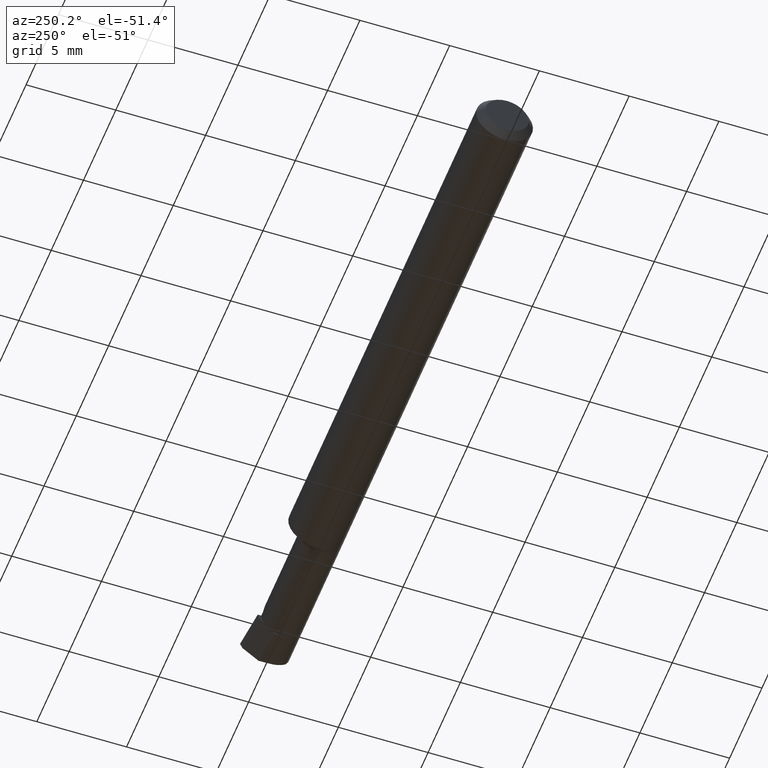
[diagram: clean part render]
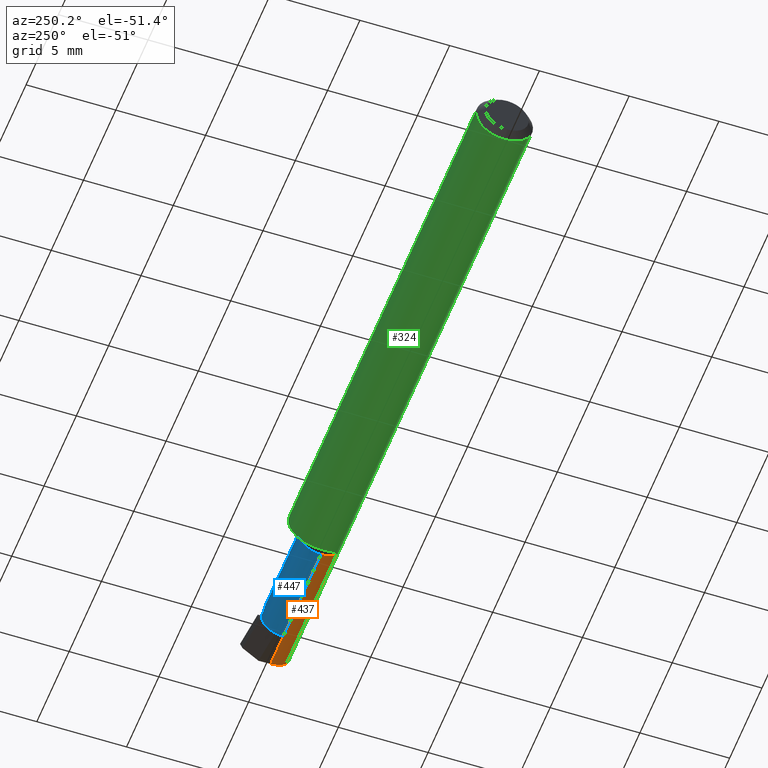
[diagram: same view with three faces highlighted in distinct colors, each labeled with its STEP entity id]
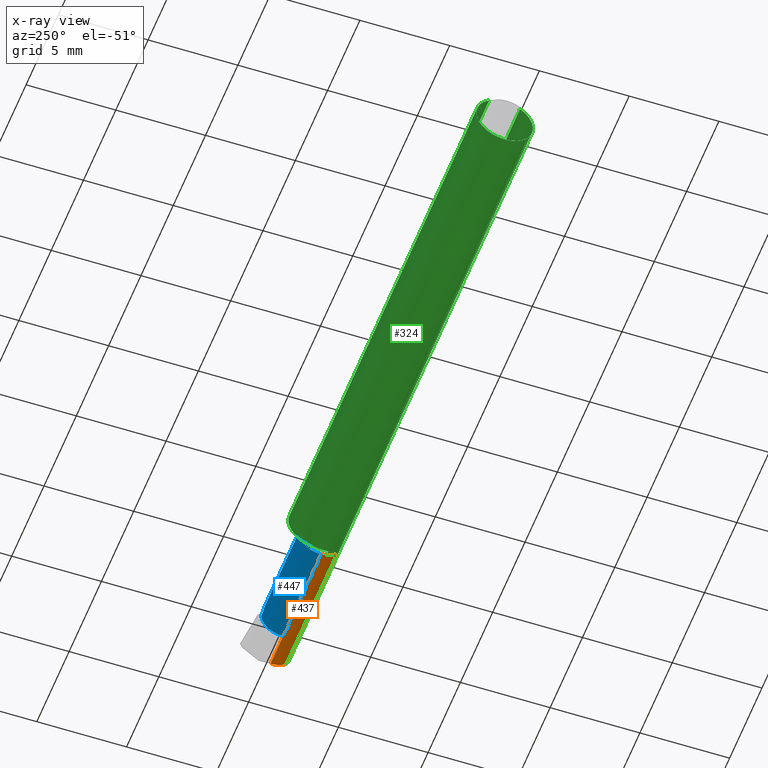
[diagram: x-ray of the same camera — body ghosted, the three highlighted faces saturated]
A machine part, auxiliary view with three faces highlighted in distinct colors.
The next image is the same camera in x-ray (body ghosted, the three faces saturated) — at least one of them is partly hidden behind the body in this view.
Their STEP definitions:

[orange] entity #437 — the highlighted cylindrical surface (edge-blend (fillet) strip) has radius 1.2205 mm, axis along (-1, -0, -0).
#7 = AXIS2_PLACEMENT_3D ( 'NONE', #164, #116, #564 ) ;
#23 = CARTESIAN_POINT ( 'NONE',  ( 1.500000000000000222, -0.01839999999999999969, -0.04804999999999998855 ) ) ;
#27 = CIRCLE ( 'NONE', #7, 0.04804999999999996774 ) ;
#30 = AXIS2_PLACEMENT_3D ( 'NONE', #473, #199, #482 ) ;
#44 = EDGE_CURVE ( 'NONE', #56, #662, #343, .T. ) ;
#45 = CARTESIAN_POINT ( 'NONE',  ( 1.492086480543131533, -0.03117368152160946565, -0.04805000000000000243 ) ) ;
#56 = VERTEX_POINT ( 'NONE', #441 ) ;
#79 = EDGE_CURVE ( 'NONE', #662, #507, #27, .T. ) ;
#100 = CARTESIAN_POINT ( 'NONE',  ( 1.493233423732482024, -0.05210000000000004211, -0.03425072991922938764 ) ) ;
#104 = CARTESIAN_POINT ( 'NONE',  ( 1.492371467082626024, -0.04299473640227066684, -0.04320958667840190531 ) ) ;
#115 = ORIENTED_EDGE ( 'NONE', *, *, #79, .F. ) ;
#116 = DIRECTION ( 'NONE',  ( -1.000000000000000000, -0.0000000000000000000, -0.0000000000000000000 ) ) ;
#123 = CYLINDRICAL_SURFACE ( 'NONE', #30, 0.04804999999999998161 ) ;
#150 = CARTESIAN_POINT ( 'NONE',  ( 1.493233423732482024, -0.05210000000000004211, -0.03425072991922938764 ) ) ;
#163 = EDGE_LOOP ( 'NONE', ( #577, #521, #411, #506, #115 ) ) ;
#164 = CARTESIAN_POINT ( 'NONE',  ( 1.185000000000000275, -0.01839999999999999969, 0.0000000000000000000 ) ) ;
#197 = FACE_OUTER_BOUND ( 'NONE', #163, .T. ) ;
#199 = DIRECTION ( 'NONE',  ( -1.000000000000000000, -0.0000000000000000000, -0.0000000000000000000 ) ) ;
#213 = CARTESIAN_POINT ( 'NONE',  ( 0.0000000000000000000, -0.01839999999999999275, -0.04804999999999998161 ) ) ;
#230 = DIRECTION ( 'NONE',  ( -1.000000000000000000, 5.691349986800549142E-18, -0.0000000000000000000 ) ) ;
#265 = CARTESIAN_POINT ( 'NONE',  ( 1.492420971165606458, -0.01839999999999999969, -0.04804999999999998855 ) ) ;
#277 = DIRECTION ( 'NONE',  ( -1.000000000000000000, -0.0000000000000000000, -0.0000000000000000000 ) ) ;
#305 = LINE ( 'NONE', #23, #458 ) ;
#340 = CARTESIAN_POINT ( 'NONE',  ( 1.492420971165606458, -0.01839999999999999969, -0.04804999999999998855 ) ) ;
#343 = LINE ( 'NONE', #213, #567 ) ;
#389 = DIRECTION ( 'NONE',  ( -1.000000000000000000, -0.0000000000000000000, -0.0000000000000000000 ) ) ;
#391 = VECTOR ( 'NONE', #277, 39.37007874015748143 ) ;
#411 = ORIENTED_EDGE ( 'NONE', *, *, #435, .F. ) ;
#435 = EDGE_CURVE ( 'NONE', #442, #637, #618, .T. ) ;
#437 = ADVANCED_FACE ( 'NONE', ( #197 ), #123, .T. ) ;
#441 = CARTESIAN_POINT ( 'NONE',  ( 1.415000000000000036, -0.01839999999999999969, -0.04804999999999998855 ) ) ;
#442 = VERTEX_POINT ( 'NONE', #150 ) ;
#458 = VECTOR ( 'NONE', #230, 39.37007874015748143 ) ;
#468 = LINE ( 'NONE', #664, #391 ) ;
#473 = CARTESIAN_POINT ( 'NONE',  ( 0.0000000000000000000, -0.01839999999999999969, 0.0000000000000000000 ) ) ;
#482 = DIRECTION ( 'NONE',  ( 0.0000000000000000000, 0.0000000000000000000, 1.000000000000000000 ) ) ;
#506 = ORIENTED_EDGE ( 'NONE', *, *, #532, .T. ) ;
#507 = VERTEX_POINT ( 'NONE', #556 ) ;
#521 = ORIENTED_EDGE ( 'NONE', *, *, #647, .F. ) ;
#532 = EDGE_CURVE ( 'NONE', #442, #507, #468, .T. ) ;
#556 = CARTESIAN_POINT ( 'NONE',  ( 1.185000000000000275, -0.05210000000000005599, -0.03425072991922935989 ) ) ;
#564 = DIRECTION ( 'NONE',  ( 0.0000000000000000000, 0.0000000000000000000, 1.000000000000000000 ) ) ;
#567 = VECTOR ( 'NONE', #389, 39.37007874015748143 ) ;
#577 = ORIENTED_EDGE ( 'NONE', *, *, #44, .F. ) ;
#618 =( BOUNDED_CURVE ( )  B_SPLINE_CURVE ( 3, ( #100, #104, #45, #265 ),
 .UNSPECIFIED., .F., .T. ) 
 B_SPLINE_CURVE_WITH_KNOTS ( ( 4, 4 ),
 ( 5.715941252449187715, 6.493234751459775467 ),
 .UNSPECIFIED. ) 
 CURVE ( )  GEOMETRIC_REPRESENTATION_ITEM ( )  RATIONAL_B_SPLINE_CURVE ( ( 1.000000000000000000, 0.9502818019828908058, 0.9502818019828908058, 1.000000000000000000 ) ) 
 REPRESENTATION_ITEM ( '' )  );
#637 = VERTEX_POINT ( 'NONE', #340 ) ;
#647 = EDGE_CURVE ( 'NONE', #637, #56, #305, .T. ) ;
#662 = VERTEX_POINT ( 'NONE', #677 ) ;
#664 = CARTESIAN_POINT ( 'NONE',  ( 1.300000000000000044, -0.05210000000000004211, -0.03425072991922938764 ) ) ;
#677 = CARTESIAN_POINT ( 'NONE',  ( 1.185000000000000275, -0.01839999999999999275, -0.04804999999999996774 ) ) ;

[blue] entity #447 — the highlighted cylindrical surface (edge-blend (fillet) strip) has radius 1.2205 mm, axis along (-1, -0, -0).
#5 = CARTESIAN_POINT ( 'NONE',  ( 1.415000000000000036, 0.02964999999999999233, 1.836970198721026236E-16 ) ) ;
#8 = DIRECTION ( 'NONE',  ( -1.000000000000000000, -0.0000000000000000000, -0.0000000000000000000 ) ) ;
#12 = CARTESIAN_POINT ( 'NONE',  ( 1.356949999999999656, 0.009747038327972771740, 0.04804999999999998855 ) ) ;
#14 = AXIS2_PLACEMENT_3D ( 'NONE', #178, #71, #614 ) ;
#15 = CARTESIAN_POINT ( 'NONE',  ( 1.376852961672026865, 0.02964999999999998540, 0.02814703832797277663 ) ) ;
#34 = VERTEX_POINT ( 'NONE', #5 ) ;
#44 = EDGE_CURVE ( 'NONE', #56, #662, #343, .T. ) ;
#56 = VERTEX_POINT ( 'NONE', #441 ) ;
#63 = CARTESIAN_POINT ( 'NONE',  ( 1.356949999999999878, -0.01839999999999999969, 0.04804999999999998161 ) ) ;
#64 = FACE_OUTER_BOUND ( 'NONE', #348, .T. ) ;
#67 = CARTESIAN_POINT ( 'NONE',  ( 1.405000000000000249, 0.02964999999999991601, 1.163414459189982046E-17 ) ) ;
#70 = ORIENTED_EDGE ( 'NONE', *, *, #149, .T. ) ;
#71 = DIRECTION ( 'NONE',  ( -1.000000000000000000, -0.0000000000000000000, -0.0000000000000000000 ) ) ;
#121 = EDGE_CURVE ( 'NONE', #258, #34, #145, .T. ) ;
#128 = VERTEX_POINT ( 'NONE', #63 ) ;
#136 = CARTESIAN_POINT ( 'NONE',  ( 1.415000000000000036, 0.007456147106387211315, -0.04050015008383134330 ) ) ;
#142 = ORIENTED_EDGE ( 'NONE', *, *, #233, .F. ) ;
#145 = LINE ( 'NONE', #337, #153 ) ;
#149 = EDGE_CURVE ( 'NONE', #128, #258, #383, .T. ) ;
#153 = VECTOR ( 'NONE', #332, 39.37007874015748143 ) ;
#155 = ORIENTED_EDGE ( 'NONE', *, *, #402, .F. ) ;
#177 = CARTESIAN_POINT ( 'NONE',  ( 1.185000000000000275, -0.01839999999999999969, 0.04804999999999996774 ) ) ;
#178 = CARTESIAN_POINT ( 'NONE',  ( 1.415000000000000036, -0.01839999999999999969, 0.0000000000000000000 ) ) ;
#198 = CIRCLE ( 'NONE', #626, 0.04805000000000000243 ) ;
#211 = DIRECTION ( 'NONE',  ( -1.000000000000000000, -0.0000000000000000000, -0.0000000000000000000 ) ) ;
#213 = CARTESIAN_POINT ( 'NONE',  ( 0.0000000000000000000, -0.01839999999999999275, -0.04804999999999998161 ) ) ;
#233 = EDGE_CURVE ( 'NONE', #128, #247, #537, .T. ) ;
#247 = VERTEX_POINT ( 'NONE', #177 ) ;
#258 = VERTEX_POINT ( 'NONE', #525 ) ;
#262 = VERTEX_POINT ( 'NONE', #136 ) ;
#275 = AXIS2_PLACEMENT_3D ( 'NONE', #666, #8, #444 ) ;
#293 = ORIENTED_EDGE ( 'NONE', *, *, #675, .T. ) ;
#301 = CARTESIAN_POINT ( 'NONE',  ( 1.415000000000000036, 0.02286474879319039949, -0.02461753454420021262 ) ) ;
#331 = CIRCLE ( 'NONE', #275, 0.04804999999999996774 ) ;
#332 = DIRECTION ( 'NONE',  ( 1.000000000000000000, 0.0000000000000000000, 0.0000000000000000000 ) ) ;
#333 = ORIENTED_EDGE ( 'NONE', *, *, #121, .T. ) ;
#335 = VERTEX_POINT ( 'NONE', #301 ) ;
#337 = CARTESIAN_POINT ( 'NONE',  ( 2.249639673992775738E-32, 0.02964999999999997499, 1.836970198721025250E-16 ) ) ;
#339 = CARTESIAN_POINT ( 'NONE',  ( 1.356949999999999878, -0.01839999999999999969, 0.04804999999999998161 ) ) ;
#343 = LINE ( 'NONE', #213, #567 ) ;
#348 = EDGE_LOOP ( 'NONE', ( #366, #372, #593, #142, #70, #333, #293, #155 ) ) ;
#350 = DIRECTION ( 'NONE',  ( -1.000000000000000000, -0.0000000000000000000, -0.0000000000000000000 ) ) ;
#353 = CARTESIAN_POINT ( 'NONE',  ( 0.0000000000000000000, -0.01839999999999999969, 0.04804999999999998161 ) ) ;
#354 = CIRCLE ( 'NONE', #512, 0.04804999999999998161 ) ;
#366 = ORIENTED_EDGE ( 'NONE', *, *, #676, .T. ) ;
#367 = CARTESIAN_POINT ( 'NONE',  ( 1.415000000000000036, -0.01839999999999999969, 0.0000000000000000000 ) ) ;
#372 = ORIENTED_EDGE ( 'NONE', *, *, #44, .T. ) ;
#373 = CARTESIAN_POINT ( 'NONE',  ( 0.0000000000000000000, -0.01839999999999999969, 0.0000000000000000000 ) ) ;
#378 = VECTOR ( 'NONE', #350, 39.37007874015748143 ) ;
#383 =( BOUNDED_CURVE ( )  B_SPLINE_CURVE ( 3, ( #339, #12, #15, #67 ),
 .UNSPECIFIED., .F., .T. ) 
 B_SPLINE_CURVE_WITH_KNOTS ( ( 4, 4 ),
 ( 0.0000000000000000000, 1.570796326794896558 ),
 .UNSPECIFIED. ) 
 CURVE ( )  GEOMETRIC_REPRESENTATION_ITEM ( )  RATIONAL_B_SPLINE_CURVE ( ( 1.000000000000000000, 0.8047378541243649375, 0.8047378541243649375, 1.000000000000000000 ) ) 
 REPRESENTATION_ITEM ( '' )  );
#389 = DIRECTION ( 'NONE',  ( -1.000000000000000000, -0.0000000000000000000, -0.0000000000000000000 ) ) ;
#402 = EDGE_CURVE ( 'NONE', #262, #335, #354, .T. ) ;
#405 = DIRECTION ( 'NONE',  ( -1.000000000000000000, -0.0000000000000000000, -0.0000000000000000000 ) ) ;
#441 = CARTESIAN_POINT ( 'NONE',  ( 1.415000000000000036, -0.01839999999999999969, -0.04804999999999998855 ) ) ;
#444 = DIRECTION ( 'NONE',  ( 0.0000000000000000000, 0.0000000000000000000, 1.000000000000000000 ) ) ;
#447 = ADVANCED_FACE ( 'NONE', ( #64 ), #679, .T. ) ;
#505 = AXIS2_PLACEMENT_3D ( 'NONE', #373, #211, #648 ) ;
#512 = AXIS2_PLACEMENT_3D ( 'NONE', #367, #641, #588 ) ;
#518 = CIRCLE ( 'NONE', #14, 0.04805000000000000243 ) ;
#525 = CARTESIAN_POINT ( 'NONE',  ( 1.405000000000000249, 0.02964999999999991601, 1.163414459189982046E-17 ) ) ;
#537 = LINE ( 'NONE', #353, #378 ) ;
#542 = EDGE_CURVE ( 'NONE', #247, #662, #331, .T. ) ;
#565 = CARTESIAN_POINT ( 'NONE',  ( 1.415000000000000036, -0.01839999999999999969, 0.0000000000000000000 ) ) ;
#567 = VECTOR ( 'NONE', #389, 39.37007874015748143 ) ;
#588 = DIRECTION ( 'NONE',  ( 0.0000000000000000000, 0.0000000000000000000, 1.000000000000000000 ) ) ;
#593 = ORIENTED_EDGE ( 'NONE', *, *, #542, .F. ) ;
#614 = DIRECTION ( 'NONE',  ( 0.0000000000000000000, 0.0000000000000000000, 1.000000000000000000 ) ) ;
#620 = DIRECTION ( 'NONE',  ( 0.0000000000000000000, 0.0000000000000000000, 1.000000000000000000 ) ) ;
#626 = AXIS2_PLACEMENT_3D ( 'NONE', #565, #405, #620 ) ;
#641 = DIRECTION ( 'NONE',  ( 1.000000000000000000, 0.0000000000000000000, 0.0000000000000000000 ) ) ;
#648 = DIRECTION ( 'NONE',  ( 0.0000000000000000000, 0.0000000000000000000, 1.000000000000000000 ) ) ;
#662 = VERTEX_POINT ( 'NONE', #677 ) ;
#666 = CARTESIAN_POINT ( 'NONE',  ( 1.185000000000000275, -0.01839999999999999969, 0.0000000000000000000 ) ) ;
#675 = EDGE_CURVE ( 'NONE', #34, #335, #198, .T. ) ;
#676 = EDGE_CURVE ( 'NONE', #262, #56, #518, .T. ) ;
#677 = CARTESIAN_POINT ( 'NONE',  ( 1.185000000000000275, -0.01839999999999999275, -0.04804999999999996774 ) ) ;
#679 = CYLINDRICAL_SURFACE ( 'NONE', #505, 0.04804999999999998161 ) ;

[green] entity #324 — the highlighted cylindrical surface (edge-blend (fillet) strip) has radius 1.5837 mm, axis along (-1, -0, -0).
#1 = ORIENTED_EDGE ( 'NONE', *, *, #653, .F. ) ;
#4 = DIRECTION ( 'NONE',  ( -1.000000000000000000, -0.0000000000000000000, -0.0000000000000000000 ) ) ;
#13 = CARTESIAN_POINT ( 'NONE',  ( 1.405000000000000249, -0.06235000000000005121, 1.163414459189982046E-17 ) ) ;
#19 = VERTEX_POINT ( 'NONE', #318 ) ;
#20 = EDGE_CURVE ( 'NONE', #173, #486, #41, .T. ) ;
#26 = DIRECTION ( 'NONE',  ( -1.000000000000000000, -0.0000000000000000000, -0.0000000000000000000 ) ) ;
#32 = CARTESIAN_POINT ( 'NONE',  ( 1.160000000000000142, 0.03386738844375224156, 0.05235000000000000070 ) ) ;
#37 = CARTESIAN_POINT ( 'NONE',  ( 0.0000000000000000000, 0.03386738844375223462, 0.05234999999999997988 ) ) ;
#41 = CIRCLE ( 'NONE', #629, 0.06235000000000000264 ) ;
#48 = ORIENTED_EDGE ( 'NONE', *, *, #532, .F. ) ;
#52 = CARTESIAN_POINT ( 'NONE',  ( 1.163943527499067265, -0.01839999999999995112, -0.05957316929625284391 ) ) ;
#62 = CARTESIAN_POINT ( 'NONE',  ( 0.01500000000000000465, 0.0000000000000000000, -0.06235000000000000264 ) ) ;
#68 = ORIENTED_EDGE ( 'NONE', *, *, #562, .F. ) ;
#78 = B_SPLINE_CURVE_WITH_KNOTS ( 'NONE', 3,
 ( #536, #587, #540, #259, #304, #590, #646, #421, #207, #707, #94, #375 ),
 .UNSPECIFIED., .F., .F.,
 ( 4, 2, 2, 2, 2, 4 ),
 ( 1.968188672663559203E-07, 0.0001598826679621257948, 0.0003195685170569852272, 0.0006389402152466985623, 0.0009583119134364120060, 0.001277683611626125341 ),
 .UNSPECIFIED. ) ;
#93 = DIRECTION ( 'NONE',  ( 0.0000000000000000000, 0.0000000000000000000, -1.000000000000000000 ) ) ;
#94 = CARTESIAN_POINT ( 'NONE',  ( 1.164710485888420743, -0.02227973916747846492, -0.05837485801745209008 ) ) ;
#97 = CIRCLE ( 'NONE', #208, 0.06235000000000000264 ) ;
#120 = CARTESIAN_POINT ( 'NONE',  ( 0.01500000000000185039, -0.03386738844380016850, 0.05235000000000000070 ) ) ;
#125 = CARTESIAN_POINT ( 'NONE',  ( 1.493233423732482024, -0.05210000000000004211, -0.03425072991922938764 ) ) ;
#133 = B_SPLINE_CURVE_WITH_KNOTS ( 'NONE', 3,
 ( #52, #392, #165, #672, #330, #377 ),
 .UNSPECIFIED., .F., .F.,
 ( 4, 2, 4 ),
 ( 0.001277683611626125341, 0.001926233481642335241, 0.002574783351658545359 ),
 .UNSPECIFIED. ) ;
#150 = CARTESIAN_POINT ( 'NONE',  ( 1.493233423732482024, -0.05210000000000004211, -0.03425072991922938764 ) ) ;
#152 = LINE ( 'NONE', #242, #279 ) ;
#158 = EDGE_CURVE ( 'NONE', #486, #684, #697, .T. ) ;
#165 = CARTESIAN_POINT ( 'NONE',  ( 1.161396250014341991, -0.002002297547419283619, -0.06287403108402092600 ) ) ;
#171 = CARTESIAN_POINT ( 'NONE',  ( 1.494315395341277553, -0.05883495956508440206, -0.02400594406595346966 ) ) ;
#173 = VERTEX_POINT ( 'NONE', #344 ) ;
#205 = VECTOR ( 'NONE', #428, 39.37007874015748143 ) ;
#207 = CARTESIAN_POINT ( 'NONE',  ( 1.167774730512701309, -0.03308328010062948354, -0.05299899880320901174 ) ) ;
#208 = AXIS2_PLACEMENT_3D ( 'NONE', #254, #252, #93 ) ;
#210 = CARTESIAN_POINT ( 'NONE',  ( 1.176602410087811634, -0.04843664215652591920, 0.03931692004732160323 ) ) ;
#216 = VERTEX_POINT ( 'NONE', #32 ) ;
#224 = VECTOR ( 'NONE', #417, 39.37007874015748143 ) ;
#238 = EDGE_CURVE ( 'NONE', #356, #684, #582, .T. ) ;
#242 = CARTESIAN_POINT ( 'NONE',  ( 2.249639673992775738E-32, -0.06234999999999999570, 1.836970198721025250E-16 ) ) ;
#243 = DIRECTION ( 'NONE',  ( 0.0000000000000000000, 0.0000000000000000000, 1.000000000000000000 ) ) ;
#244 = LINE ( 'NONE', #398, #407 ) ;
#246 = CARTESIAN_POINT ( 'NONE',  ( 1.160000000000000142, 0.03016902173913034446, -0.05456512281030696798 ) ) ;
#249 = ORIENTED_EDGE ( 'NONE', *, *, #449, .F. ) ;
#252 = DIRECTION ( 'NONE',  ( 1.000000000000000000, 0.0000000000000000000, 0.0000000000000000000 ) ) ;
#254 = CARTESIAN_POINT ( 'NONE',  ( 1.160000000000000142, 0.0000000000000000000, 0.0000000000000000000 ) ) ;
#257 = VERTEX_POINT ( 'NONE', #246 ) ;
#259 = CARTESIAN_POINT ( 'NONE',  ( 1.178063614445013840, -0.04963912592730899270, -0.03775824298307042803 ) ) ;
#266 = CARTESIAN_POINT ( 'NONE',  ( 1.179178979635574942, -0.05033758282015989710, 0.03680695256572117519 ) ) ;
#270 = EDGE_CURVE ( 'NONE', #670, #706, #152, .T. ) ;
#271 = ORIENTED_EDGE ( 'NONE', *, *, #158, .F. ) ;
#277 = DIRECTION ( 'NONE',  ( -1.000000000000000000, -0.0000000000000000000, -0.0000000000000000000 ) ) ;
#279 = VECTOR ( 'NONE', #26, 39.37007874015748143 ) ;
#295 = CARTESIAN_POINT ( 'NONE',  ( 0.0000000000000000000, -0.03386738844375222768, 0.05234999999999997988 ) ) ;
#300 = VERTEX_POINT ( 'NONE', #363 ) ;
#302 = EDGE_CURVE ( 'NONE', #257, #216, #97, .T. ) ;
#303 = DIRECTION ( 'NONE',  ( 0.0000000000000000000, 0.0000000000000000000, 1.000000000000000000 ) ) ;
#304 = CARTESIAN_POINT ( 'NONE',  ( 1.176855754336165738, -0.04856891343705587588, -0.03913748562448261109 ) ) ;
#307 = CARTESIAN_POINT ( 'NONE',  ( 1.168143989668697369, -0.03386738844377055330, 0.05235000000000000070 ) ) ;
#310 = CARTESIAN_POINT ( 'NONE',  ( 1.171579710012544684, -0.04200879032723220385, 0.04631940421101470723 ) ) ;
#315 = CARTESIAN_POINT ( 'NONE',  ( 1.182325466551640281, -0.05179156103573015479, 0.03472422648579320814 ) ) ;
#318 = CARTESIAN_POINT ( 'NONE',  ( 1.163943527499067265, -0.01839999999999995112, -0.05957316929625284391 ) ) ;
#324 = ADVANCED_FACE ( 'NONE', ( #526 ), #710, .T. ) ;
#330 = CARTESIAN_POINT ( 'NONE',  ( 1.160000000000000142, 0.02282614954852009090, -0.05862499217990969208 ) ) ;
#344 = CARTESIAN_POINT ( 'NONE',  ( 0.01500000000000000465, 0.03386738844375223462, 0.05234999999999997988 ) ) ;
#346 = ORIENTED_EDGE ( 'NONE', *, *, #412, .T. ) ;
#356 = VERTEX_POINT ( 'NONE', #307 ) ;
#359 = CARTESIAN_POINT ( 'NONE',  ( 0.0000000000000000000, 0.0000000000000000000, 0.0000000000000000000 ) ) ;
#363 = CARTESIAN_POINT ( 'NONE',  ( 1.370749270080770632, -0.05210000000000018783, 0.03425072991922922805 ) ) ;
#375 = CARTESIAN_POINT ( 'NONE',  ( 1.163943527499067265, -0.01839999999999995112, -0.05957316929625284391 ) ) ;
#376 = DIRECTION ( 'NONE',  ( 0.0000000000000000000, 0.0000000000000000000, 1.000000000000000000 ) ) ;
#377 = CARTESIAN_POINT ( 'NONE',  ( 1.160000000000000142, 0.03016902173913034446, -0.05456512281030696798 ) ) ;
#380 = ORIENTED_EDGE ( 'NONE', *, *, #270, .T. ) ;
#381 = CARTESIAN_POINT ( 'NONE',  ( 1.185000000000000275, -0.05210000000000007681, 0.03425072991922933213 ) ) ;
#391 = VECTOR ( 'NONE', #277, 39.37007874015748143 ) ;
#392 = CARTESIAN_POINT ( 'NONE',  ( 1.162386060865227444, -0.01052139226165768604, -0.06200658662318052350 ) ) ;
#398 = CARTESIAN_POINT ( 'NONE',  ( 1.300000000000000044, -0.05210000000000004211, 0.03425072991922938764 ) ) ;
#403 = CARTESIAN_POINT ( 'NONE',  ( 1.495666027076596238, -0.06235000000000000264, -0.01226031473995684365 ) ) ;
#407 = VECTOR ( 'NONE', #410, 39.37007874015748143 ) ;
#410 = DIRECTION ( 'NONE',  ( 1.000000000000000000, 0.0000000000000000000, 0.0000000000000000000 ) ) ;
#412 = EDGE_CURVE ( 'NONE', #173, #216, #475, .T. ) ;
#417 = DIRECTION ( 'NONE',  ( -1.000000000000000000, -0.0000000000000000000, -0.0000000000000000000 ) ) ;
#421 = CARTESIAN_POINT ( 'NONE',  ( 1.169002343694370616, -0.03635371779854198321, -0.05080473676934865734 ) ) ;
#424 = EDGE_CURVE ( 'NONE', #507, #19, #78, .T. ) ;
#428 = DIRECTION ( 'NONE',  ( 1.000000000000000000, 0.0000000000000000000, 0.0000000000000000000 ) ) ;
#429 = AXIS2_PLACEMENT_3D ( 'NONE', #621, #688, #243 ) ;
#442 = VERTEX_POINT ( 'NONE', #150 ) ;
#449 = EDGE_CURVE ( 'NONE', #356, #519, #466, .T. ) ;
#460 = CARTESIAN_POINT ( 'NONE',  ( 1.370749270080770632, -0.05210000000000018783, 0.03425072991922922805 ) ) ;
#466 = B_SPLINE_CURVE_WITH_KNOTS ( 'NONE', 3,
 ( #705, #594, #310, #547, #210, #266, #654, #315, #602, #649 ),
 .UNSPECIFIED., .F., .F.,
 ( 4, 2, 2, 2, 4 ),
 ( 3.799952872692126052E-07, 0.0004056523638566320511, 0.0006082885481413133864, 0.0007096066402836539999, 0.0008109247324259946134 ),
 .UNSPECIFIED. ) ;
#468 = LINE ( 'NONE', #664, #391 ) ;
#475 = LINE ( 'NONE', #37, #205 ) ;
#485 = ORIENTED_EDGE ( 'NONE', *, *, #709, .T. ) ;
#486 = VERTEX_POINT ( 'NONE', #62 ) ;
#507 = VERTEX_POINT ( 'NONE', #556 ) ;
#519 = VERTEX_POINT ( 'NONE', #381 ) ;
#522 = CARTESIAN_POINT ( 'NONE',  ( 1.497171920470529161, -0.06235000000000005121, 3.552677088412731724E-19 ) ) ;
#524 = CARTESIAN_POINT ( 'NONE',  ( 1.392739685260043325, -0.06235000000000000264, 0.01226031473995677773 ) ) ;
#526 = FACE_OUTER_BOUND ( 'NONE', #599, .T. ) ;
#532 = EDGE_CURVE ( 'NONE', #442, #507, #468, .T. ) ;
#535 = CARTESIAN_POINT ( 'NONE',  ( 1.380994055934046782, -0.05883495956508445063, 0.02400594406595332048 ) ) ;
#536 = CARTESIAN_POINT ( 'NONE',  ( 1.185000000000000275, -0.05210000000000005599, -0.03425072991922935989 ) ) ;
#538 = ORIENTED_EDGE ( 'NONE', *, *, #302, .F. ) ;
#540 = CARTESIAN_POINT ( 'NONE',  ( 1.181001860247194779, -0.05138041438525047661, -0.03535223831097223518 ) ) ;
#546 = ORIENTED_EDGE ( 'NONE', *, *, #424, .F. ) ;
#547 = CARTESIAN_POINT ( 'NONE',  ( 1.175232443815719785, -0.04692169178955598458, 0.04112849538229055441 ) ) ;
#548 =( BOUNDED_CURVE ( )  B_SPLINE_CURVE ( 3, ( #581, #524, #535, #460 ),
 .UNSPECIFIED., .F., .F. ) 
 B_SPLINE_CURVE_WITH_KNOTS ( ( 4, 4 ),
 ( 4.712388980384689674, 5.293951277779024522 ),
 .UNSPECIFIED. ) 
 CURVE ( )  GEOMETRIC_REPRESENTATION_ITEM ( )  RATIONAL_B_SPLINE_CURVE ( ( 1.000000000000000000, 0.9720134746468970244, 0.9720134746468970244, 1.000000000000000000 ) ) 
 REPRESENTATION_ITEM ( '' )  );
#553 = CARTESIAN_POINT ( 'NONE',  ( 0.01500000000000000465, 0.0000000000000000000, 0.0000000000000000000 ) ) ;
#556 = CARTESIAN_POINT ( 'NONE',  ( 1.185000000000000275, -0.05210000000000005599, -0.03425072991922935989 ) ) ;
#562 = EDGE_CURVE ( 'NONE', #19, #257, #133, .T. ) ;
#572 = CARTESIAN_POINT ( 'NONE',  ( 1.497171920470529161, -0.06235000000000005121, 3.552677088412731724E-19 ) ) ;
#581 = CARTESIAN_POINT ( 'NONE',  ( 1.405000000000000249, -0.06235000000000005121, 1.163414459189982046E-17 ) ) ;
#582 = LINE ( 'NONE', #295, #224 ) ;
#583 = AXIS2_PLACEMENT_3D ( 'NONE', #359, #638, #303 ) ;
#587 = CARTESIAN_POINT ( 'NONE',  ( 1.182870800850614579, -0.05210000000000007681, -0.03425072991922935989 ) ) ;
#590 = CARTESIAN_POINT ( 'NONE',  ( 1.173631399483169746, -0.04510599191766682947, -0.04319271381807390786 ) ) ;
#594 = CARTESIAN_POINT ( 'NONE',  ( 1.169741742128376005, -0.03819491529868383750, 0.04955034320923033808 ) ) ;
#599 = EDGE_LOOP ( 'NONE', ( #48, #659, #380, #485, #1, #249, #622, #271, #698, #346, #538, #68, #546 ) ) ;
#602 = CARTESIAN_POINT ( 'NONE',  ( 1.183628380198574304, -0.05210000000115968394, 0.03425072991746588857 ) ) ;
#621 = CARTESIAN_POINT ( 'NONE',  ( 0.01500000000000000465, 0.0000000000000000000, 0.0000000000000000000 ) ) ;
#622 = ORIENTED_EDGE ( 'NONE', *, *, #238, .T. ) ;
#629 = AXIS2_PLACEMENT_3D ( 'NONE', #553, #4, #376 ) ;
#634 = EDGE_CURVE ( 'NONE', #442, #670, #663, .T. ) ;
#638 = DIRECTION ( 'NONE',  ( -1.000000000000000000, -0.0000000000000000000, -0.0000000000000000000 ) ) ;
#646 = CARTESIAN_POINT ( 'NONE',  ( 1.171960678340712825, -0.04239780856895207506, -0.04588180363204273637 ) ) ;
#649 = CARTESIAN_POINT ( 'NONE',  ( 1.185000000000000275, -0.05210000000000007681, 0.03425072991922933213 ) ) ;
#653 = EDGE_CURVE ( 'NONE', #519, #300, #244, .T. ) ;
#654 = CARTESIAN_POINT ( 'NONE',  ( 1.180111704662779371, -0.05090166660896876943, 0.03601608024180057155 ) ) ;
#659 = ORIENTED_EDGE ( 'NONE', *, *, #634, .T. ) ;
#663 =( BOUNDED_CURVE ( )  B_SPLINE_CURVE ( 3, ( #125, #171, #403, #522 ),
 .UNSPECIFIED., .F., .T. ) 
 B_SPLINE_CURVE_WITH_KNOTS ( ( 4, 4 ),
 ( 0.7791845851203693663, 1.360746882514708211 ),
 .UNSPECIFIED. ) 
 CURVE ( )  GEOMETRIC_REPRESENTATION_ITEM ( )  RATIONAL_B_SPLINE_CURVE ( ( 1.000000000000000000, 0.9720134746468966913, 0.9720134746468966913, 1.000000000000000000 ) ) 
 REPRESENTATION_ITEM ( '' )  );
#664 = CARTESIAN_POINT ( 'NONE',  ( 1.300000000000000044, -0.05210000000000004211, -0.03425072991922938764 ) ) ;
#670 = VERTEX_POINT ( 'NONE', #572 ) ;
#672 = CARTESIAN_POINT ( 'NONE',  ( 1.160208269291442829, 0.01460127996857740577, -0.06118787137580494057 ) ) ;
#684 = VERTEX_POINT ( 'NONE', #120 ) ;
#688 = DIRECTION ( 'NONE',  ( -1.000000000000000000, -0.0000000000000000000, -0.0000000000000000000 ) ) ;
#697 = CIRCLE ( 'NONE', #429, 0.06235000000000000264 ) ;
#698 = ORIENTED_EDGE ( 'NONE', *, *, #20, .F. ) ;
#705 = CARTESIAN_POINT ( 'NONE',  ( 1.168143989668697369, -0.03386738844377055330, 0.05235000000000000070 ) ) ;
#706 = VERTEX_POINT ( 'NONE', #13 ) ;
#707 = CARTESIAN_POINT ( 'NONE',  ( 1.165629458297511301, -0.02606820000987077057, -0.05677892429946720942 ) ) ;
#709 = EDGE_CURVE ( 'NONE', #706, #300, #548, .T. ) ;
#710 = CYLINDRICAL_SURFACE ( 'NONE', #583, 0.06235000000000000264 ) ;